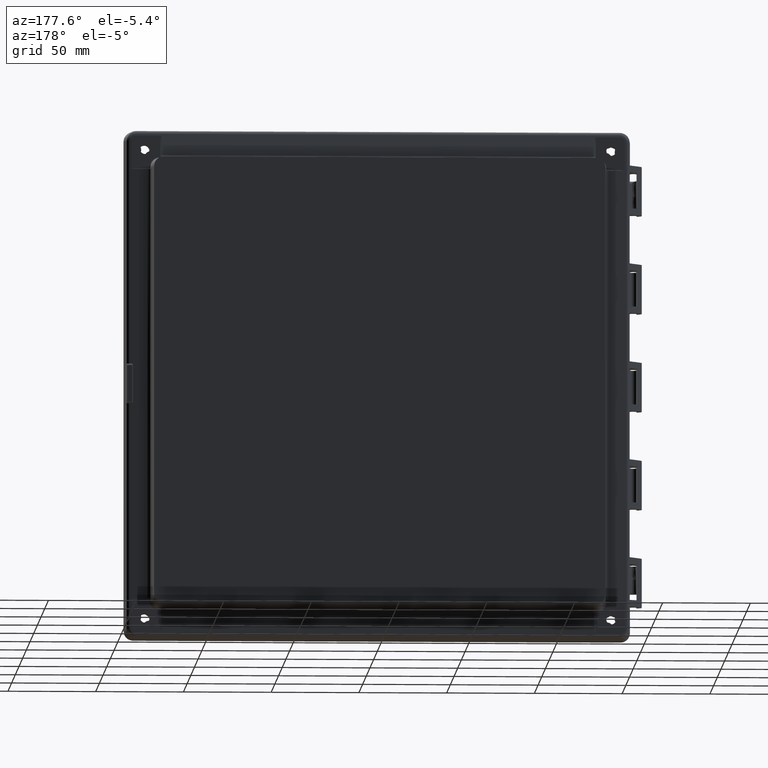
[diagram: clean part render]
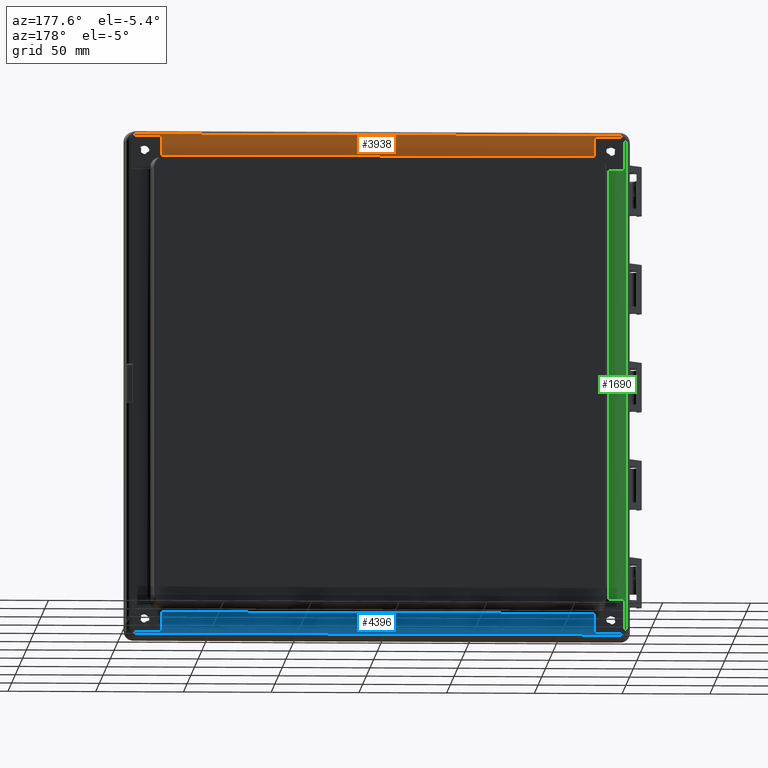
[diagram: same view with three faces highlighted in distinct colors, each labeled with its STEP entity id]
A machine part, auxiliary view with three faces highlighted in distinct colors.
Their STEP definitions:

[orange] entity #3938 — the highlighted planar face has unit normal (0, 0.9954, 0.0958).
#2465 = EDGE_CURVE ( 'NONE', #11975, #12004, #13833, .T. ) ;
#3898 = VERTEX_POINT ( 'NONE', #18316 ) ;
#3923 = VERTEX_POINT ( 'NONE', #18416 ) ;
#3924 = ORIENTED_EDGE ( 'NONE', *, *, #3925, .T. ) ;
#3925 = EDGE_CURVE ( 'NONE', #3923, #3926, #18415, .T. ) ;
#3926 = VERTEX_POINT ( 'NONE', #18414 ) ;
#3927 = ORIENTED_EDGE ( 'NONE', *, *, #3928, .T. ) ;
#3928 = EDGE_CURVE ( 'NONE', #3926, #3929, #18407, .T. ) ;
#3929 = VERTEX_POINT ( 'NONE', #18403 ) ;
#3935 = EDGE_CURVE ( 'NONE', #34216, #3963, #18397, .T. ) ;
#3938 = ADVANCED_FACE ( 'NONE', ( #18393 ), #18443, .T. ) ;
#3940 = EDGE_LOOP ( 'NONE', ( #3941, #3942, #4004, #4005, #4006, #4007, #3924, #3927, #3991, #3993 ) ) ;
#3941 = ORIENTED_EDGE ( 'NONE', *, *, #3935, .F. ) ;
#3942 = ORIENTED_EDGE ( 'NONE', *, *, #34234, .F. ) ;
#3963 = VERTEX_POINT ( 'NONE', #18755 ) ;
#3965 = EDGE_CURVE ( 'NONE', #3963, #3898, #18754, .T. ) ;
#3991 = ORIENTED_EDGE ( 'NONE', *, *, #3992, .T. ) ;
#3992 = EDGE_CURVE ( 'NONE', #3929, #3898, #18902, .T. ) ;
#3993 = ORIENTED_EDGE ( 'NONE', *, *, #3965, .F. ) ;
#4004 = ORIENTED_EDGE ( 'NONE', *, *, #11970, .T. ) ;
#4005 = ORIENTED_EDGE ( 'NONE', *, *, #2465, .T. ) ;
#4006 = ORIENTED_EDGE ( 'NONE', *, *, #12001, .T. ) ;
#4007 = ORIENTED_EDGE ( 'NONE', *, *, #4008, .F. ) ;
#4008 = EDGE_CURVE ( 'NONE', #3923, #12002, #19214, .T. ) ;
#11970 = EDGE_CURVE ( 'NONE', #34212, #11975, #28752, .T. ) ;
#11975 = VERTEX_POINT ( 'NONE', #28773 ) ;
#12001 = EDGE_CURVE ( 'NONE', #12004, #12002, #28939, .T. ) ;
#12002 = VERTEX_POINT ( 'NONE', #28938 ) ;
#12004 = VERTEX_POINT ( 'NONE', #28983 ) ;
#13830 = DIRECTION ( 'NONE',  ( -0.7054734583899082700, -0.06792936783698780300, 0.7054734583899308100 ) ) ;
#13831 = VECTOR ( 'NONE', #13830, 1000.000000000000100 ) ;
#13832 = CARTESIAN_POINT ( 'NONE',  ( -138.4889559685815100, 10.22118112375264700, 142.1788684103675000 ) ) ;
#13833 = LINE ( 'NONE', #13832, #13831 ) ;
#18316 = CARTESIAN_POINT ( 'NONE',  ( 123.5349119825290000, 10.26305314132459900, 141.7440108813360100 ) ) ;
#18393 = FACE_OUTER_BOUND ( 'NONE', #3940, .T. ) ;
#18394 = DIRECTION ( 'NONE',  ( 1.000000000000000000, -1.404876236710706800E-017, 0.0000000000000000000 ) ) ;
#18395 = VECTOR ( 'NONE', #18394, 1000.000000000000000 ) ;
#18396 = CARTESIAN_POINT ( 'NONE',  ( 2.428612866367529900E-013, 11.33487797383372900, 130.6126843953759900 ) ) ;
#18397 = LINE ( 'NONE', #18396, #18395 ) ;
#18403 = CARTESIAN_POINT ( 'NONE',  ( 138.0540984395499900, 10.26305314132459900, 141.7440108813360100 ) ) ;
#18404 = DIRECTION ( 'NONE',  ( -0.7054734583899082700, 0.06792936783698780300, -0.7054734583899308100 ) ) ;
#18405 = VECTOR ( 'NONE', #18404, 1000.000000000000100 ) ;
#18406 = CARTESIAN_POINT ( 'NONE',  ( 138.4889559685815600, 10.22118112375264500, 142.1788684103675000 ) ) ;
#18407 = LINE ( 'NONE', #18406, #18405 ) ;
#18408 = CARTESIAN_POINT ( 'NONE',  ( 138.9238134976130800, 10.17930910618054700, 142.6137259393989900 ) ) ;
#18409 = CARTESIAN_POINT ( 'NONE',  ( 138.8155336269810500, 10.17618133250312000, 142.6462091110171600 ) ) ;
#18410 = CARTESIAN_POINT ( 'NONE',  ( 138.5970483946371100, 10.17096336594562400, 142.7003997656676700 ) ) ;
#18411 = CARTESIAN_POINT ( 'NONE',  ( 138.2616409665649800, 10.16622243586982700, 142.7496362070339400 ) ) ;
#18412 = CARTESIAN_POINT ( 'NONE',  ( 138.0367413932731600, 10.16517322947808200, 142.7605326320312400 ) ) ;
#18413 = CARTESIAN_POINT ( 'NONE',  ( 137.9236508560150300, 10.16517196802750100, 142.7605457326960200 ) ) ;
#18414 = CARTESIAN_POINT ( 'NONE',  ( 138.9238134976130800, 10.17930910618054700, 142.6137259393989900 ) ) ;
#18415 = B_SPLINE_CURVE_WITH_KNOTS ( 'NONE', 3,
 ( #18413, #18412, #18411, #18410, #18409, #18408 ),
 .UNSPECIFIED., .F., .F.,
 ( 4, 1, 1, 4 ),
 ( 0.0000000000000000000, 0.0003380648899097870400, 0.0006761391703260749400, 0.001014204060237086500 ),
 .UNSPECIFIED. ) ;
#18416 = CARTESIAN_POINT ( 'NONE',  ( 137.9236508560150300, 10.16517196802750100, 142.7605457326960200 ) ) ;
#18439 = DIRECTION ( 'NONE',  ( 0.0000000000000000000, -0.09584575252022101100, 0.9953961983671790700 ) ) ;
#18440 = DIRECTION ( 'NONE',  ( 1.132255010869580200E-017, 0.9953961983671790700, 0.09584575252022101100 ) ) ;
#18441 = CARTESIAN_POINT ( 'NONE',  ( -91.62592220716959400, 10.00000000000000000, 144.4759222071699900 ) ) ;
#18442 = AXIS2_PLACEMENT_3D ( 'NONE', #18441, #18440, #18439 ) ;
#18443 = PLANE ( 'NONE',  #18442 ) ;
#18754 = LINE ( 'NONE', #18798, #18797 ) ;
#18755 = CARTESIAN_POINT ( 'NONE',  ( 123.4787400232769700, 11.33487797383372700, 130.6126843953759900 ) ) ;
#18796 = DIRECTION ( 'NONE',  ( 0.005022999675637008400, -0.09584454339323114600, 0.9953836411032690500 ) ) ;
#18797 = VECTOR ( 'NONE', #18796, 1000.000000000000100 ) ;
#18798 = CARTESIAN_POINT ( 'NONE',  ( 123.5068260029030400, 10.79896555757913200, 136.1783476383559700 ) ) ;
#18851 = DIRECTION ( 'NONE',  ( -1.000000000000000000, 0.0000000000000000000, 0.0000000000000000000 ) ) ;
#18852 = VECTOR ( 'NONE', #18851, 1000.000000000000000 ) ;
#18853 = CARTESIAN_POINT ( 'NONE',  ( 130.7945052110395100, 10.26305314132459900, 141.7440108813360100 ) ) ;
#18902 = LINE ( 'NONE', #18853, #18852 ) ;
#19210 = CARTESIAN_POINT ( 'NONE',  ( 0.0000000000000000000, 10.16517196802754300, 142.7605457326959900 ) ) ;
#19211 = DIRECTION ( 'NONE',  ( -1.000000000000000000, 6.288709243158618400E-018, 0.0000000000000000000 ) ) ;
#19212 = VECTOR ( 'NONE', #19211, 1000.000000000000000 ) ;
#19214 = LINE ( 'NONE', #19210, #19212 ) ;
#28742 = DIRECTION ( 'NONE',  ( -1.000000000000000000, 0.0000000000000000000, 0.0000000000000000000 ) ) ;
#28743 = VECTOR ( 'NONE', #28742, 1000.000000000000000 ) ;
#28751 = CARTESIAN_POINT ( 'NONE',  ( -130.7945052110393400, 10.26305314132462100, 141.7440108813360100 ) ) ;
#28752 = LINE ( 'NONE', #28751, #28743 ) ;
#28773 = CARTESIAN_POINT ( 'NONE',  ( -138.0540984395500200, 10.26305314132462100, 141.7440108813360100 ) ) ;
#28938 = CARTESIAN_POINT ( 'NONE',  ( -137.9236508560150900, 10.16517196802750400, 142.7605457326959900 ) ) ;
#28939 = B_SPLINE_CURVE_WITH_KNOTS ( 'NONE', 3,
 ( #28981, #28980, #28979, #28978, #28977, #28976 ),
 .UNSPECIFIED., .F., .F.,
 ( 4, 1, 1, 4 ),
 ( 0.0000000000000000000, 0.0003380648914756692300, 0.0006761391734710006700, 0.001014204064946424000 ),
 .UNSPECIFIED. ) ;
#28976 = CARTESIAN_POINT ( 'NONE',  ( -137.9236508560150900, 10.16517196802750400, 142.7605457326959900 ) ) ;
#28977 = CARTESIAN_POINT ( 'NONE',  ( -138.0367413943829700, 10.16517322832618000, 142.7605326439942500 ) ) ;
#28978 = CARTESIAN_POINT ( 'NONE',  ( -138.2616409691927400, 10.16622243318251500, 142.7496362349428400 ) ) ;
#28979 = CARTESIAN_POINT ( 'NONE',  ( -138.5970484002155600, 10.17096336330001600, 142.7003997931433000 ) ) ;
#28980 = CARTESIAN_POINT ( 'NONE',  ( -138.8155336293880000, 10.17618133136955900, 142.6462091227896800 ) ) ;
#28981 = CARTESIAN_POINT ( 'NONE',  ( -138.9238134976130000, 10.17930910618067300, 142.6137259393989900 ) ) ;
#28983 = CARTESIAN_POINT ( 'NONE',  ( -138.9238134976130000, 10.17930910618067300, 142.6137259393989900 ) ) ;
#33831 = CARTESIAN_POINT ( 'NONE',  ( -123.5349119825286600, 10.26305314132462100, 141.7440108813360100 ) ) ;
#34074 = CARTESIAN_POINT ( 'NONE',  ( -123.4787400232764900, 11.33487797383373100, 130.6126843953759900 ) ) ;
#34129 = DIRECTION ( 'NONE',  ( 0.005022999675631982000, 0.09584454339323134100, -0.9953836411032690500 ) ) ;
#34130 = VECTOR ( 'NONE', #34129, 1000.000000000000100 ) ;
#34131 = CARTESIAN_POINT ( 'NONE',  ( -123.5068260029025700, 10.79896555757917500, 136.1783476383560000 ) ) ;
#34132 = LINE ( 'NONE', #34131, #34130 ) ;
#34212 = VERTEX_POINT ( 'NONE', #33831 ) ;
#34216 = VERTEX_POINT ( 'NONE', #34074 ) ;
#34234 = EDGE_CURVE ( 'NONE', #34212, #34216, #34132, .T. ) ;

[blue] entity #4396 — the highlighted planar face has unit normal (0, 0.9954, -0.0958).
#2448 = VERTEX_POINT ( 'NONE', #13761 ) ;
#2450 = EDGE_CURVE ( 'NONE', #18983, #2448, #13799, .T. ) ;
#2511 = EDGE_CURVE ( 'NONE', #2448, #19017, #13953, .T. ) ;
#3808 = EDGE_CURVE ( 'NONE', #3831, #3835, #17898, .T. ) ;
#3831 = VERTEX_POINT ( 'NONE', #18060 ) ;
#3835 = VERTEX_POINT ( 'NONE', #18074 ) ;
#4091 = VERTEX_POINT ( 'NONE', #19453 ) ;
#4160 = EDGE_CURVE ( 'NONE', #4091, #12008, #19784, .T. ) ;
#4168 = VERTEX_POINT ( 'NONE', #19814 ) ;
#4170 = EDGE_CURVE ( 'NONE', #4168, #4091, #19816, .T. ) ;
#4331 = EDGE_CURVE ( 'NONE', #12051, #3835, #20401, .T. ) ;
#4382 = ORIENTED_EDGE ( 'NONE', *, *, #4383, .T. ) ;
#4383 = EDGE_CURVE ( 'NONE', #4407, #3831, #20452, .T. ) ;
#4384 = ORIENTED_EDGE ( 'NONE', *, *, #3808, .T. ) ;
#4396 = ADVANCED_FACE ( 'NONE', ( #20467 ), #20473, .T. ) ;
#4397 = EDGE_LOOP ( 'NONE', ( #4398, #4399, #4400, #4401, #4402, #4403, #4404, #4405, #4382, #4384 ) ) ;
#4398 = ORIENTED_EDGE ( 'NONE', *, *, #4331, .F. ) ;
#4399 = ORIENTED_EDGE ( 'NONE', *, *, #18994, .T. ) ;
#4400 = ORIENTED_EDGE ( 'NONE', *, *, #2450, .T. ) ;
#4401 = ORIENTED_EDGE ( 'NONE', *, *, #2511, .T. ) ;
#4402 = ORIENTED_EDGE ( 'NONE', *, *, #19117, .F. ) ;
#4403 = ORIENTED_EDGE ( 'NONE', *, *, #4160, .F. ) ;
#4404 = ORIENTED_EDGE ( 'NONE', *, *, #4170, .F. ) ;
#4405 = ORIENTED_EDGE ( 'NONE', *, *, #4406, .T. ) ;
#4406 = EDGE_CURVE ( 'NONE', #4168, #4407, #20462, .T. ) ;
#4407 = VERTEX_POINT ( 'NONE', #20513 ) ;
#12008 = VERTEX_POINT ( 'NONE', #28975 ) ;
#12051 = VERTEX_POINT ( 'NONE', #29117 ) ;
#13761 = CARTESIAN_POINT ( 'NONE',  ( -138.0540984395500200, 10.26305314132462100, -141.7440108813360100 ) ) ;
#13796 = DIRECTION ( 'NONE',  ( 0.7054734583899195900, 0.06792936783698887100, 0.7054734583899195900 ) ) ;
#13797 = VECTOR ( 'NONE', #13796, 1000.000000000000100 ) ;
#13798 = CARTESIAN_POINT ( 'NONE',  ( -138.4889559685820200, 10.22118112375259700, -142.1788684103680100 ) ) ;
#13799 = LINE ( 'NONE', #13798, #13797 ) ;
#13950 = DIRECTION ( 'NONE',  ( 1.000000000000000000, 0.0000000000000000000, 0.0000000000000000000 ) ) ;
#13951 = VECTOR ( 'NONE', #13950, 1000.000000000000000 ) ;
#13952 = CARTESIAN_POINT ( 'NONE',  ( -130.7945052110395900, 10.26305314132462100, -141.7440108813360100 ) ) ;
#13953 = LINE ( 'NONE', #13952, #13951 ) ;
#17891 = CARTESIAN_POINT ( 'NONE',  ( 137.9236508560150000, 10.16517196802754500, -142.7605457326959900 ) ) ;
#17892 = CARTESIAN_POINT ( 'NONE',  ( 138.0367407296397200, 10.16517382033964100, -142.7605264929709100 ) ) ;
#17893 = CARTESIAN_POINT ( 'NONE',  ( 138.2616395072291500, 10.16622378181383200, -142.7496222225056200 ) ) ;
#17894 = CARTESIAN_POINT ( 'NONE',  ( 138.5970510199825600, 10.17096205125017100, -142.7004134129717800 ) ) ;
#17895 = CARTESIAN_POINT ( 'NONE',  ( 138.8155347566396600, 10.17618075453876400, -142.6462151106932800 ) ) ;
#17896 = CARTESIAN_POINT ( 'NONE',  ( 138.9238134976130000, 10.17930910618054000, -142.6137259393989900 ) ) ;
#17898 = B_SPLINE_CURVE_WITH_KNOTS ( 'NONE', 3,
 ( #17896, #17895, #17894, #17893, #17892, #17891 ),
 .UNSPECIFIED., .F., .F.,
 ( 4, 1, 1, 4 ),
 ( 0.0000000000000000000, 0.0003380652494706765100, 0.0006761395220712261700, 0.001014204046914580000 ),
 .UNSPECIFIED. ) ;
#18060 = CARTESIAN_POINT ( 'NONE',  ( 138.9238134976130000, 10.17930910618054000, -142.6137259393989900 ) ) ;
#18074 = CARTESIAN_POINT ( 'NONE',  ( 137.9236508560150000, 10.16517196802754500, -142.7605457326959900 ) ) ;
#18983 = VERTEX_POINT ( 'NONE', #29328 ) ;
#18994 = EDGE_CURVE ( 'NONE', #12051, #18983, #29399, .T. ) ;
#19017 = VERTEX_POINT ( 'NONE', #29441 ) ;
#19117 = EDGE_CURVE ( 'NONE', #12008, #19017, #30754, .T. ) ;
#19453 = CARTESIAN_POINT ( 'NONE',  ( 123.4787400232764900, 11.33487797383372900, -130.6126843953759900 ) ) ;
#19781 = DIRECTION ( 'NONE',  ( -1.000000000000000000, 0.0000000000000000000, 0.0000000000000000000 ) ) ;
#19782 = VECTOR ( 'NONE', #19781, 1000.000000000000000 ) ;
#19783 = CARTESIAN_POINT ( 'NONE',  ( -2.428612866367529900E-013, 11.33487797383372900, -130.6126843953759900 ) ) ;
#19784 = LINE ( 'NONE', #19783, #19782 ) ;
#19808 = DIRECTION ( 'NONE',  ( -0.005022999675631982000, 0.09584454339323117400, 0.9953836411032690500 ) ) ;
#19809 = VECTOR ( 'NONE', #19808, 1000.000000000000100 ) ;
#19810 = CARTESIAN_POINT ( 'NONE',  ( 123.5068260029025700, 10.79896555757917500, -136.1783476383560000 ) ) ;
#19814 = CARTESIAN_POINT ( 'NONE',  ( 123.5349119825290000, 10.26305314132459900, -141.7440108813360100 ) ) ;
#19816 = LINE ( 'NONE', #19810, #19809 ) ;
#20397 = DIRECTION ( 'NONE',  ( 1.000000000000000000, 0.0000000000000000000, 0.0000000000000000000 ) ) ;
#20398 = VECTOR ( 'NONE', #20397, 1000.000000000000000 ) ;
#20399 = CARTESIAN_POINT ( 'NONE',  ( -1.056099652174680200E-011, 10.16517196802754500, -142.7605457326959900 ) ) ;
#20401 = LINE ( 'NONE', #20399, #20398 ) ;
#20449 = DIRECTION ( 'NONE',  ( 0.7054734583899082700, -0.06792936783698919100, -0.7054734583899308100 ) ) ;
#20450 = VECTOR ( 'NONE', #20449, 1000.000000000000000 ) ;
#20451 = CARTESIAN_POINT ( 'NONE',  ( 138.4889559685815100, 10.22118112375251400, -142.1788684103675000 ) ) ;
#20452 = LINE ( 'NONE', #20451, #20450 ) ;
#20462 = LINE ( 'NONE', #20516, #20515 ) ;
#20463 = DIRECTION ( 'NONE',  ( 0.0000000000000000000, 0.09584575252022101100, 0.9953961983671790700 ) ) ;
#20464 = DIRECTION ( 'NONE',  ( 0.0000000000000000000, 0.9953961983671790700, -0.09584575252022101100 ) ) ;
#20465 = CARTESIAN_POINT ( 'NONE',  ( 143.3259222071700100, 10.00000000000000000, -144.4759222071699900 ) ) ;
#20466 = AXIS2_PLACEMENT_3D ( 'NONE', #20465, #20464, #20463 ) ;
#20467 = FACE_OUTER_BOUND ( 'NONE', #4397, .T. ) ;
#20473 = PLANE ( 'NONE',  #20466 ) ;
#20513 = CARTESIAN_POINT ( 'NONE',  ( 138.0540984395499900, 10.26305314132459900, -141.7440108813360100 ) ) ;
#20514 = DIRECTION ( 'NONE',  ( 1.000000000000000000, 0.0000000000000000000, 0.0000000000000000000 ) ) ;
#20515 = VECTOR ( 'NONE', #20514, 1000.000000000000000 ) ;
#20516 = CARTESIAN_POINT ( 'NONE',  ( 130.7945052110395100, 10.26305314132459900, -141.7440108813360100 ) ) ;
#28975 = CARTESIAN_POINT ( 'NONE',  ( -123.4787400232769700, 11.33487797383372900, -130.6126843953759900 ) ) ;
#29117 = CARTESIAN_POINT ( 'NONE',  ( -137.9236508560361200, 10.16517196802754500, -142.7605457326959900 ) ) ;
#29328 = CARTESIAN_POINT ( 'NONE',  ( -138.9238134976140200, 10.17930910618057400, -142.6137259394000100 ) ) ;
#29390 = CARTESIAN_POINT ( 'NONE',  ( -138.9238134976140200, 10.17930910618057400, -142.6137259394000100 ) ) ;
#29391 = CARTESIAN_POINT ( 'NONE',  ( -138.8155336269820200, 10.17618133250305800, -142.6462091110178400 ) ) ;
#29392 = CARTESIAN_POINT ( 'NONE',  ( -138.5970483946379900, 10.17096336594561000, -142.7003997656678700 ) ) ;
#29393 = CARTESIAN_POINT ( 'NONE',  ( -138.2616409665726800, 10.16622243586988000, -142.7496362070334000 ) ) ;
#29394 = CARTESIAN_POINT ( 'NONE',  ( -138.0367413932874300, 10.16517322947812800, -142.7605326320307600 ) ) ;
#29395 = CARTESIAN_POINT ( 'NONE',  ( -137.9236508560361200, 10.16517196802754500, -142.7605457326959900 ) ) ;
#29399 = B_SPLINE_CURVE_WITH_KNOTS ( 'NONE', 3,
 ( #29395, #29394, #29393, #29392, #29391, #29390 ),
 .UNSPECIFIED., .F., .F.,
 ( 4, 1, 1, 4 ),
 ( 0.0000000000000000000, 0.0003380648898895041600, 0.0006761391703061297400, 0.001014204060216757200 ),
 .UNSPECIFIED. ) ;
#29441 = CARTESIAN_POINT ( 'NONE',  ( -123.5349119825291700, 10.26305314132462100, -141.7440108813360100 ) ) ;
#30751 = DIRECTION ( 'NONE',  ( -0.005022999675634464400, -0.09584454339323117400, -0.9953836411032690500 ) ) ;
#30752 = VECTOR ( 'NONE', #30751, 1000.000000000000100 ) ;
#30753 = CARTESIAN_POINT ( 'NONE',  ( -123.5068260029030700, 10.79896555757917500, -136.1783476383560000 ) ) ;
#30754 = LINE ( 'NONE', #30753, #30752 ) ;

[green] entity #1690 — the highlighted planar face has unit normal (-0.0958, 0.9954, 0).
#1358 = ORIENTED_EDGE ( 'NONE', *, *, #1754, .T. ) ;
#1690 = ADVANCED_FACE ( 'NONE', ( #12539 ), #12538, .T. ) ;
#1691 = EDGE_LOOP ( 'NONE', ( #1692, #1693, #1694, #1358, #1756, #1758, #1759, #1760, #1761, #1763, #1764 ) ) ;
#1692 = ORIENTED_EDGE ( 'NONE', *, *, #11905, .F. ) ;
#1693 = ORIENTED_EDGE ( 'NONE', *, *, #8049, .F. ) ;
#1694 = ORIENTED_EDGE ( 'NONE', *, *, #19098, .F. ) ;
#1754 = EDGE_CURVE ( 'NONE', #7991, #1755, #12602, .T. ) ;
#1755 = VERTEX_POINT ( 'NONE', #12656 ) ;
#1756 = ORIENTED_EDGE ( 'NONE', *, *, #1757, .T. ) ;
#1757 = EDGE_CURVE ( 'NONE', #1755, #12048, #12655, .T. ) ;
#1758 = ORIENTED_EDGE ( 'NONE', *, *, #12045, .T. ) ;
#1759 = ORIENTED_EDGE ( 'NONE', *, *, #12055, .F. ) ;
#1760 = ORIENTED_EDGE ( 'NONE', *, *, #12039, .T. ) ;
#1761 = ORIENTED_EDGE ( 'NONE', *, *, #1762, .T. ) ;
#1762 = EDGE_CURVE ( 'NONE', #12025, #11946, #12651, .T. ) ;
#1763 = ORIENTED_EDGE ( 'NONE', *, *, #11950, .T. ) ;
#1764 = ORIENTED_EDGE ( 'NONE', *, *, #34204, .F. ) ;
#7991 = VERTEX_POINT ( 'NONE', #28056 ) ;
#7995 = VERTEX_POINT ( 'NONE', #28047 ) ;
#8049 = EDGE_CURVE ( 'NONE', #7995, #8050, #28213, .T. ) ;
#8050 = VERTEX_POINT ( 'NONE', #28212 ) ;
#11905 = EDGE_CURVE ( 'NONE', #8050, #32431, #28567, .T. ) ;
#11946 = VERTEX_POINT ( 'NONE', #28731 ) ;
#11950 = EDGE_CURVE ( 'NONE', #11946, #33983, #28730, .T. ) ;
#12010 = VERTEX_POINT ( 'NONE', #28972 ) ;
#12025 = VERTEX_POINT ( 'NONE', #29096 ) ;
#12038 = VERTEX_POINT ( 'NONE', #29098 ) ;
#12039 = EDGE_CURVE ( 'NONE', #12010, #12025, #29097, .T. ) ;
#12045 = EDGE_CURVE ( 'NONE', #12048, #12038, #29127, .T. ) ;
#12048 = VERTEX_POINT ( 'NONE', #29118 ) ;
#12055 = EDGE_CURVE ( 'NONE', #12010, #12038, #29225, .T. ) ;
#12534 = DIRECTION ( 'NONE',  ( -0.9953961983671790700, -0.09584575252022101100, 0.0000000000000000000 ) ) ;
#12535 = DIRECTION ( 'NONE',  ( -0.09584575252022101100, 0.9953961983671790700, 2.301641331364210300E-017 ) ) ;
#12536 = AXIS2_PLACEMENT_3D ( 'NONE', #12537, #12535, #12534 ) ;
#12537 = CARTESIAN_POINT ( 'NONE',  ( -143.3259222071700100, 10.00000000000000000, -144.4759222071699900 ) ) ;
#12538 = PLANE ( 'NONE',  #12536 ) ;
#12539 = FACE_OUTER_BOUND ( 'NONE', #1691, .T. ) ;
#12602 = LINE ( 'NONE', #12659, #12658 ) ;
#12648 = DIRECTION ( 'NONE',  ( 0.7054734583899308100, 0.06792936783698919100, -0.7054734583899082700 ) ) ;
#12649 = VECTOR ( 'NONE', #12648, 1000.000000000000000 ) ;
#12650 = CARTESIAN_POINT ( 'NONE',  ( -141.0288684103674900, 10.22118112375251700, 139.6389559685815700 ) ) ;
#12651 = LINE ( 'NONE', #12650, #12649 ) ;
#12652 = DIRECTION ( 'NONE',  ( -0.7054734583899307000, -0.06792936783698978700, -0.7054734583899081600 ) ) ;
#12653 = VECTOR ( 'NONE', #12652, 1000.000000000000100 ) ;
#12654 = CARTESIAN_POINT ( 'NONE',  ( -141.0288684103676600, 10.22118112375249800, -139.6389559685816600 ) ) ;
#12655 = LINE ( 'NONE', #12654, #12653 ) ;
#12656 = CARTESIAN_POINT ( 'NONE',  ( -140.5940108813360000, 10.26305314132459900, -139.2040984395499700 ) ) ;
#12657 = DIRECTION ( 'NONE',  ( 0.0000000000000000000, 0.0000000000000000000, -1.000000000000000000 ) ) ;
#12658 = VECTOR ( 'NONE', #12657, 1000.000000000000000 ) ;
#12659 = CARTESIAN_POINT ( 'NONE',  ( -140.5940108813360000, 10.26305314132459900, -130.9445052110395100 ) ) ;
#19098 = EDGE_CURVE ( 'NONE', #7991, #7995, #30124, .T. ) ;
#28047 = CARTESIAN_POINT ( 'NONE',  ( -136.0334195278003300, 10.70218814197447100, -122.6618978923396200 ) ) ;
#28056 = CARTESIAN_POINT ( 'NONE',  ( -140.5940108813360000, 10.26305314132459900, -122.6849119825290200 ) ) ;
#28208 = CARTESIAN_POINT ( 'NONE',  ( -131.4727593893726700, 11.14095166735850200, -122.6552895800889200 ) ) ;
#28209 = CARTESIAN_POINT ( 'NONE',  ( -132.9929973366865900, 10.99465290907962400, -122.6618678980734200 ) ) ;
#28210 = CARTESIAN_POINT ( 'NONE',  ( -134.5132224849236300, 10.84856646830576000, -122.6618828973982100 ) ) ;
#28211 = CARTESIAN_POINT ( 'NONE',  ( -136.0334195278003300, 10.70218814197447100, -122.6618978923396200 ) ) ;
#28212 = CARTESIAN_POINT ( 'NONE',  ( -131.4727593893726700, 11.14095166735850200, -122.6552895800889200 ) ) ;
#28213 = B_SPLINE_CURVE_WITH_KNOTS ( 'NONE', 3,
 ( #28211, #28210, #28209, #28208 ),
 .UNSPECIFIED., .F., .F.,
 ( 4, 4 ),
 ( 0.4999999999991418500, 1.000000000000000000 ),
 .UNSPECIFIED. ) ;
#28564 = DIRECTION ( 'NONE',  ( 0.0000000000000000000, -2.828463452439612800E-017, 1.000000000000000000 ) ) ;
#28565 = VECTOR ( 'NONE', #28564, 1000.000000000000000 ) ;
#28566 = CARTESIAN_POINT ( 'NONE',  ( -131.4728281742490000, 11.14132314262584900, -2.567390744445674500E-013 ) ) ;
#28567 = LINE ( 'NONE', #28566, #28565 ) ;
#28727 = DIRECTION ( 'NONE',  ( 0.0000000000000000000, 0.0000000000000000000, -1.000000000000000000 ) ) ;
#28728 = VECTOR ( 'NONE', #28727, 1000.000000000000000 ) ;
#28729 = CARTESIAN_POINT ( 'NONE',  ( -140.5940108813360000, 10.26305314132459900, 130.9445052110395100 ) ) ;
#28730 = LINE ( 'NONE', #28729, #28728 ) ;
#28731 = CARTESIAN_POINT ( 'NONE',  ( -140.5940108813360000, 10.26305314132449100, 139.2040984395500500 ) ) ;
#28972 = CARTESIAN_POINT ( 'NONE',  ( -141.6105457326960100, 10.16517196802753800, 139.0736508560150100 ) ) ;
#29096 = CARTESIAN_POINT ( 'NONE',  ( -141.4637259393989800, 10.17930910618054300, 140.0738134976130300 ) ) ;
#29097 = B_SPLINE_CURVE_WITH_KNOTS ( 'NONE', 3,
 ( #29133, #29132, #29131, #29130, #29129, #29128 ),
 .UNSPECIFIED., .F., .F.,
 ( 4, 1, 1, 4 ),
 ( 0.0000000000000000000, 0.0003380648899105092200, 0.0006761391703268368100, 0.001014204060237047000 ),
 .UNSPECIFIED. ) ;
#29098 = CARTESIAN_POINT ( 'NONE',  ( -141.6105457326960100, 10.16517196802754500, -139.0736508560353300 ) ) ;
#29118 = CARTESIAN_POINT ( 'NONE',  ( -141.4637259393993500, 10.17930910618050400, -140.0738134976133400 ) ) ;
#29119 = CARTESIAN_POINT ( 'NONE',  ( -141.6105457326960100, 10.16517196802754500, -139.0736508560353300 ) ) ;
#29120 = CARTESIAN_POINT ( 'NONE',  ( -141.6105264929711900, 10.16517382033968500, -139.1867407296400900 ) ) ;
#29121 = CARTESIAN_POINT ( 'NONE',  ( -141.5996222225047300, 10.16622378181393300, -139.4116395072299500 ) ) ;
#29122 = CARTESIAN_POINT ( 'NONE',  ( -141.5504134129727200, 10.17096205125007600, -139.7470510199841300 ) ) ;
#29123 = CARTESIAN_POINT ( 'NONE',  ( -141.4962151106936700, 10.17618075453873100, -139.9655347566411500 ) ) ;
#29124 = CARTESIAN_POINT ( 'NONE',  ( -141.4637259393993500, 10.17930910618050400, -140.0738134976133400 ) ) ;
#29127 = B_SPLINE_CURVE_WITH_KNOTS ( 'NONE', 3,
 ( #29124, #29123, #29122, #29121, #29120, #29119 ),
 .UNSPECIFIED., .F., .F.,
 ( 4, 1, 1, 4 ),
 ( 0.0000000000000000000, 0.0003380652494703601900, 0.0006761395220713172500, 0.001014204046915901600 ),
 .UNSPECIFIED. ) ;
#29128 = CARTESIAN_POINT ( 'NONE',  ( -141.4637259393989800, 10.17930910618054300, 140.0738134976130300 ) ) ;
#29129 = CARTESIAN_POINT ( 'NONE',  ( -141.4962091110171500, 10.17618133250312000, 139.9655336269812600 ) ) ;
#29130 = CARTESIAN_POINT ( 'NONE',  ( -141.5503997656676600, 10.17096336594562300, 139.7470483946376000 ) ) ;
#29131 = CARTESIAN_POINT ( 'NONE',  ( -141.5996362070339700, 10.16622243586982300, 139.4116409665655000 ) ) ;
#29132 = CARTESIAN_POINT ( 'NONE',  ( -141.6105326320313200, 10.16517322947807300, 139.1867413932733900 ) ) ;
#29133 = CARTESIAN_POINT ( 'NONE',  ( -141.6105457326960100, 10.16517196802753800, 139.0736508560150100 ) ) ;
#29222 = DIRECTION ( 'NONE',  ( 0.0000000000000000000, 3.118353953641198500E-017, -1.000000000000000000 ) ) ;
#29223 = VECTOR ( 'NONE', #29222, 1000.000000000000000 ) ;
#29225 = LINE ( 'NONE', #29271, #29223 ) ;
#29271 = CARTESIAN_POINT ( 'NONE',  ( -141.6105457326960100, 10.16517196802754000, -1.015854067532018200E-011 ) ) ;
#30120 = CARTESIAN_POINT ( 'NONE',  ( -136.0334195278003300, 10.70218814197447100, -122.6618978923396200 ) ) ;
#30121 = CARTESIAN_POINT ( 'NONE',  ( -137.5536165706717800, 10.55580981564365800, -122.6619128872810300 ) ) ;
#30122 = CARTESIAN_POINT ( 'NONE',  ( -139.0737855081390000, 10.40913960375963900, -122.6619278866058200 ) ) ;
#30123 = CARTESIAN_POINT ( 'NONE',  ( -140.5940108813360000, 10.26305314132459900, -122.6849119825290200 ) ) ;
#30124 = B_SPLINE_CURVE_WITH_KNOTS ( 'NONE', 3,
 ( #30123, #30122, #30121, #30120 ),
 .UNSPECIFIED., .F., .F.,
 ( 4, 4 ),
 ( 0.0000000000000000000, 0.4999999999991418500 ),
 .UNSPECIFIED. ) ;
#32431 = VERTEX_POINT ( 'NONE', #33230 ) ;
#33230 = CARTESIAN_POINT ( 'NONE',  ( -131.4727486382572600, 11.14097794266003100, 122.6572638947192100 ) ) ;
#33558 = CARTESIAN_POINT ( 'NONE',  ( -140.5940108813360000, 10.26305314132461700, 122.6618978923391100 ) ) ;
#33756 = CARTESIAN_POINT ( 'NONE',  ( -140.5940108813360000, 10.26305314132461700, 122.6618978923391100 ) ) ;
#33757 = CARTESIAN_POINT ( 'NONE',  ( -137.5536447058667300, 10.55610083566054400, 122.6618904629514600 ) ) ;
#33758 = CARTESIAN_POINT ( 'NONE',  ( -134.5132503958780900, 10.84885750991455400, 122.6619053217267600 ) ) ;
#33759 = CARTESIAN_POINT ( 'NONE',  ( -131.4727486382572600, 11.14097794266003100, 122.6572638947192100 ) ) ;
#33761 = B_SPLINE_CURVE_WITH_KNOTS ( 'NONE', 3,
 ( #33759, #33758, #33757, #33756 ),
 .UNSPECIFIED., .F., .F.,
 ( 4, 4 ),
 ( 0.0000000000000000000, 1.000000000000000000 ),
 .UNSPECIFIED. ) ;
#33983 = VERTEX_POINT ( 'NONE', #33558 ) ;
#34204 = EDGE_CURVE ( 'NONE', #32431, #33983, #33761, .T. ) ;